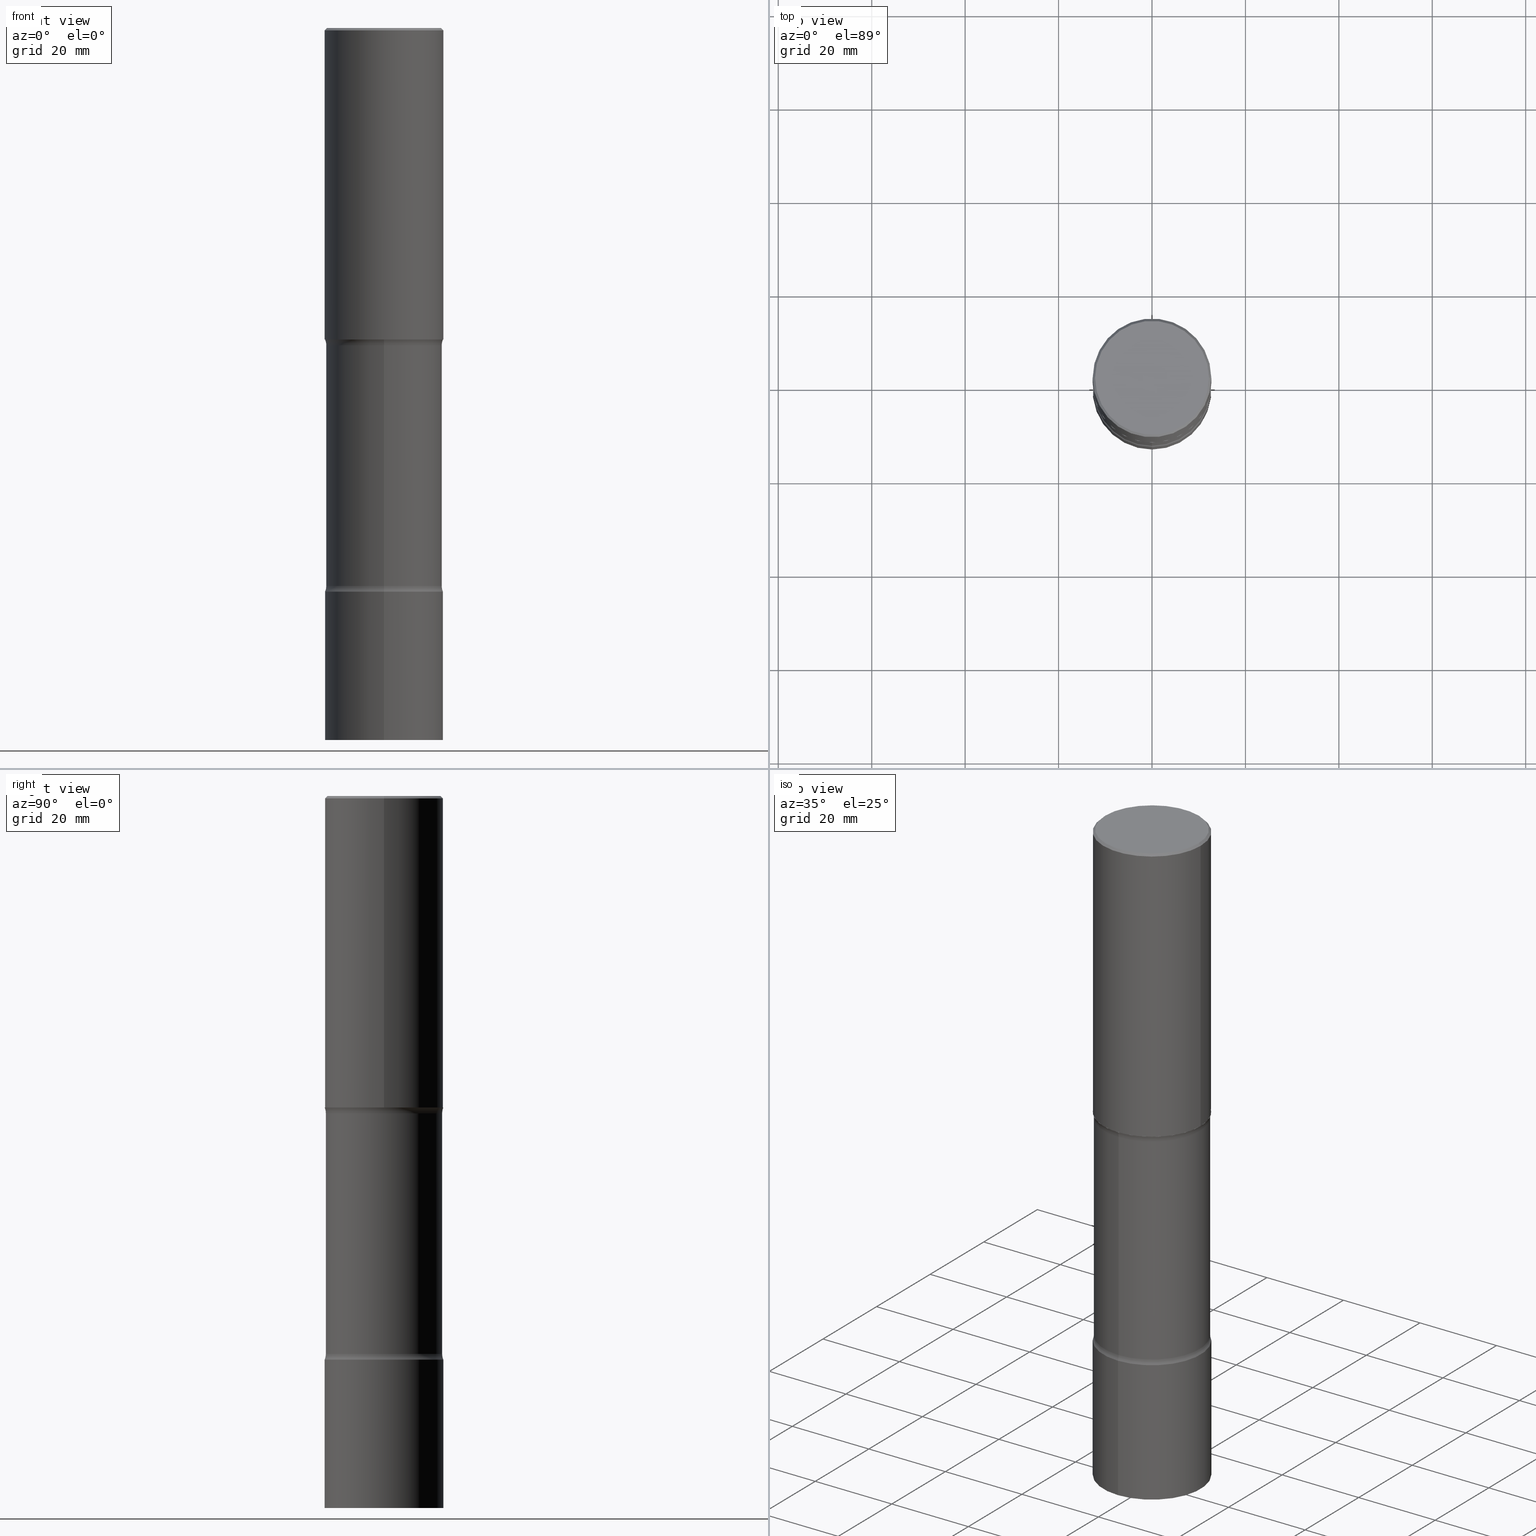
[diagram: canonical four-view strip — front | top / right | iso, engineering-drawing reading convention]
A machine part, canonical four-view strip (front | top / right | iso — engineering-drawing reading convention). The complete STEP part file that produces these views, byte-faithful:
ISO-10303-21;
HEADER;
FILE_DESCRIPTION (( 'STEP AP203' ),
    '1' );
FILE_NAME ('32744.STEP',
    '2024-03-11T13:19:12',
    ( '' ),
    ( '' ),
    'SwSTEP 2.0',
    'SolidWorks 2023',
    '' );
FILE_SCHEMA (( 'CONFIG_CONTROL_DESIGN' ));
ENDSEC;

DATA;
#1 = DIRECTION ( 'NONE',  ( 2.445468806185136597E-29, -3.491481338843145583E-15, -1.000000000000000000 ) ) ;
#2 = UNCERTAINTY_MEASURE_WITH_UNIT (LENGTH_MEASURE( 1.000000000000000082E-05 ), #186, 'distance_accuracy_value', 'NONE');
#3 = CC_DESIGN_DATE_AND_TIME_ASSIGNMENT ( #286, #433, ( #80 ) ) ;
#4 = DIRECTION ( 'NONE',  ( -2.438088387897960049E-29, 3.491481338843145188E-15, 1.000000000000000000 ) ) ;
#5 = DIRECTION ( 'NONE',  ( -6.982962677686265133E-15, -1.000000000000000000, 3.492714180422504382E-15 ) ) ;
#6 = AXIS2_PLACEMENT_3D ( 'NONE', #211, #174, #370 ) ;
#7 = COORDINATED_UNIVERSAL_TIME_OFFSET ( 5, 0, .BEHIND. ) ;
#8 = DIRECTION ( 'NONE',  ( -2.444607917511519707E-29, 3.492714180422504382E-15, 1.000000000000000000 ) ) ;
#9 = ADVANCED_FACE ( 'NONE', ( #118 ), #376, .F. ) ;
#10 = MANIFOLD_SOLID_BREP ( 'Body-Move/Copy2[4]', #229 ) ;
#11 = DIRECTION ( 'NONE',  ( 2.438088387897960049E-29, -3.491481338843145188E-15, -1.000000000000000000 ) ) ;
#12 = DIRECTION ( 'NONE',  ( 6.982962677686265922E-15, 1.000000000000000000, -3.278217592397115073E-15 ) ) ;
#13 = VERTEX_POINT ( 'NONE', #148 ) ;
#14 = AXIS2_PLACEMENT_3D ( 'NONE', #480, #297, #250 ) ;
#15 = VECTOR ( 'NONE', #418, 39.37007874015748143 ) ;
#16 = DIRECTION ( 'NONE',  ( 2.601351323791836917E-29, -3.268248701348439037E-15, -1.000000000000000000 ) ) ;
#17 = ADVANCED_FACE ( 'NONE', ( #281 ), #365, .T. ) ;
#18 = CARTESIAN_POINT ( 'NONE',  ( -3.491481338843133355E-15, -0.5000000000000001110, 1.746357090211252585E-15 ) ) ;
#19 = ORIENTED_EDGE ( 'NONE', *, *, #428, .T. ) ;
#20 = VERTEX_POINT ( 'NONE', #350 ) ;
#21 = CIRCLE ( 'NONE', #318, 0.5000000000000001110 ) ;
#22 = AXIS2_PLACEMENT_3D ( 'NONE', #43, #84, #330 ) ;
#23 = DIRECTION ( 'NONE',  ( 2.601351323791836917E-29, -3.268248701348439037E-15, -1.000000000000000000 ) ) ;
#24 = DIRECTION ( 'NONE',  ( 6.982962677686266711E-15, 1.000000000000000000, -3.278217592397113101E-15 ) ) ;
#25 = ORIENTED_EDGE ( 'NONE', *, *, #325, .F. ) ;
#26 = DIRECTION ( 'NONE',  ( 6.982962677686266711E-15, 1.000000000000000000, -3.278217592397113101E-15 ) ) ;
#27 = ORIENTED_EDGE ( 'NONE', *, *, #119, .T. ) ;
#28 = ORIENTED_EDGE ( 'NONE', *, *, #325, .T. ) ;
#29 = ADVANCED_FACE ( 'NONE', ( #201 ), #34, .F. ) ;
#30 = CIRCLE ( 'NONE', #378, 0.1249999999999999029 ) ;
#31 = CARTESIAN_POINT ( 'NONE',  ( 1.161188760817972078E-28, -1.659039235700689818E-14, -4.750000000000000000 ) ) ;
#32 = EDGE_LOOP ( 'NONE', ( #193, #28, #461, #70 ) ) ;
#33 = DIRECTION ( 'NONE',  ( 1.000000000000000000, -6.982962677686266711E-15, 4.876036955247133327E-29 ) ) ;
#34 = PLANE ( 'NONE',  #156 ) ;
#35 = EDGE_CURVE ( 'NONE', #59, #111, #319, .T. ) ;
#36 = FACE_OUTER_BOUND ( 'NONE', #343, .T. ) ;
#37 = EDGE_LOOP ( 'NONE', ( #225, #448, #341, #405 ) ) ;
#38 = CARTESIAN_POINT ( 'NONE',  ( 6.419355616235988051E-29, -9.165138514463262923E-15, -2.625000000000001776 ) ) ;
#39 = CALENDAR_DATE ( 2024, 11, 3 ) ;
#40 = PLANE ( 'NONE',  #117 ) ;
#41 = EDGE_LOOP ( 'NONE', ( #147, #309, #160, #263 ) ) ;
#42 = EDGE_CURVE ( 'NONE', #128, #111, #208, .T. ) ;
#43 = CARTESIAN_POINT ( 'NONE',  ( 0.000000000000000000, 0.000000000000000000, 0.000000000000000000 ) ) ;
#44 = DIRECTION ( 'NONE',  ( -1.000000000000000000, 6.982962677686265922E-15, -4.876176775795935793E-29 ) ) ;
#45 = TOROIDAL_SURFACE ( 'NONE', #279, 0.6150000000000003242, 0.1250000000000000000 ) ;
#46 = SECURITY_CLASSIFICATION ( '', '', #371 ) ;
#47 = CC_DESIGN_DATE_AND_TIME_ASSIGNMENT ( #222, #57, ( #46 ) ) ;
#48 = FACE_OUTER_BOUND ( 'NONE', #496, .T. ) ;
#49 = ADVANCED_BREP_SHAPE_REPRESENTATION ( '32744', ( #178, #173, #10, #22 ), #170 ) ;
#50 = CARTESIAN_POINT ( 'NONE',  ( -0.4799999999999995937, 3.386736898677836436E-15, 1.280553747027767124E-17 ) ) ;
#51 = ORIENTED_EDGE ( 'NONE', *, *, #333, .T. ) ;
#52 =( LENGTH_UNIT ( ) NAMED_UNIT ( * ) SI_UNIT ( $, .METRE. ) );
#53 = FACE_OUTER_BOUND ( 'NONE', #467, .T. ) ;
#54 = EDGE_LOOP ( 'NONE', ( #363, #69, #218, #144 ) ) ;
#55 = CARTESIAN_POINT ( 'NONE',  ( 0.000000000000000000, 0.000000000000000000, 0.000000000000000000 ) ) ;
#56 = VERTEX_POINT ( 'NONE', #508 ) ;
#57 = DATE_TIME_ROLE ( 'classification_date' ) ;
#58 = DIRECTION ( 'NONE',  ( 2.601351323791836917E-29, -3.268248701348439037E-15, -1.000000000000000000 ) ) ;
#59 = VERTEX_POINT ( 'NONE', #427 ) ;
#60 = PERSON_AND_ORGANIZATION ( #316, #139 ) ;
#61 = CARTESIAN_POINT ( 'NONE',  ( 1.148444794047964962E-28, -1.643028152359054986E-14, -4.701010205144336318 ) ) ;
#62 = ORIENTED_EDGE ( 'NONE', *, *, #447, .F. ) ;
#63 = VECTOR ( 'NONE', #122, 39.37007874015748143 ) ;
#64 = PERSON_AND_ORGANIZATION_ROLE ( 'classification_officer' ) ;
#65 = AXIS2_PLACEMENT_3D ( 'NONE', #398, #353, #5 ) ;
#66 = DIRECTION ( 'NONE',  ( 1.000000000000000000, -6.860497997771530774E-15, 4.843532690973873817E-29 ) ) ;
#67 = ORIENTED_EDGE ( 'NONE', *, *, #424, .T. ) ;
#68 = CARTESIAN_POINT ( 'NONE',  ( 0.4799999999999995937, -3.396558832296479338E-15, 1.280553747032483033E-17 ) ) ;
#69 = ORIENTED_EDGE ( 'NONE', *, *, #35, .T. ) ;
#70 = ORIENTED_EDGE ( 'NONE', *, *, #469, .F. ) ;
#71 = AXIS2_PLACEMENT_3D ( 'NONE', #85, #220, #126 ) ;
#72 = CARTESIAN_POINT ( 'NONE',  ( 1.486357676291951426E-28, -2.067570323369244540E-14, -5.999999999999999112 ) ) ;
#73 = DIRECTION ( 'NONE',  ( -2.445468806185136597E-29, 3.491481338843145583E-15, 1.000000000000000000 ) ) ;
#74 = DIMENSIONAL_EXPONENTS ( 1.000000000000000000, 0.000000000000000000, 0.000000000000000000, 0.000000000000000000, 0.000000000000000000, 0.000000000000000000, 0.000000000000000000 ) ;
#75 = ORIENTED_EDGE ( 'NONE', *, *, #239, .F. ) ;
#76 = EDGE_CURVE ( 'NONE', #56, #335, #260, .T. ) ;
#77 = DIRECTION ( 'NONE',  ( 6.982962677686265922E-15, 1.000000000000000000, -3.268248701348439037E-15 ) ) ;
#78 = AXIS2_PLACEMENT_3D ( 'NONE', #344, #113, #77 ) ;
#79 = CIRCLE ( 'NONE', #230, 0.4900000000000003242 ) ;
#80 = PRODUCT_DEFINITION ( 'UNKNOWN', '', #280, #91 ) ;
#81 = DIRECTION ( 'NONE',  ( -2.444607917511519987E-29, 3.492714180422504776E-15, 1.000000000000000000 ) ) ;
#82 = EDGE_CURVE ( 'NONE', #99, #20, #323, .T. ) ;
#83 = DIRECTION ( 'NONE',  ( 6.982962677686265922E-15, 1.000000000000000000, -3.492714180422504382E-15 ) ) ;
#84 = DIRECTION ( 'NONE',  ( 0.000000000000000000, 0.000000000000000000, 1.000000000000000000 ) ) ;
#85 = CARTESIAN_POINT ( 'NONE',  ( 6.419355616235988051E-29, -9.165138514463262923E-15, -2.625000000000001776 ) ) ;
#86 = VERTEX_POINT ( 'NONE', #114 ) ;
#87 = AXIS2_PLACEMENT_3D ( 'NONE', #406, #362, #12 ) ;
#88 = COORDINATED_UNIVERSAL_TIME_OFFSET ( 5, 0, .BEHIND. ) ;
#89 = DIRECTION ( 'NONE',  ( -6.982962677686265133E-15, -1.000000000000000000, 3.492714180422504382E-15 ) ) ;
#90 = DIRECTION ( 'NONE',  ( -2.445468806185136597E-29, 3.491481338843145583E-15, 1.000000000000000000 ) ) ;
#91 = DESIGN_CONTEXT ( 'detailed design', #440, 'design' ) ;
#92 = DATE_AND_TIME ( #380, #458 ) ;
#93 = CARTESIAN_POINT ( 'NONE',  ( 3.491481338843249712E-15, 0.4999999999999836242, -4.750000000000001776 ) ) ;
#94 = ADVANCED_FACE ( 'NONE', ( #430 ), #131, .T. ) ;
#95 = EDGE_LOOP ( 'NONE', ( #506, #450, #354, #493 ) ) ;
#96 = AXIS2_PLACEMENT_3D ( 'NONE', #240, #73, #242 ) ;
#97 = VECTOR ( 'NONE', #372, 39.37007874015748143 ) ;
#98 = DIRECTION ( 'NONE',  ( -2.445468806185136597E-29, 3.491481338843145583E-15, 1.000000000000000000 ) ) ;
#99 = VERTEX_POINT ( 'NONE', #463 ) ;
#100 = APPROVAL_ROLE ( '' ) ;
#101 = DIRECTION ( 'NONE',  ( 2.601351323791836917E-29, -3.268248701348439037E-15, -1.000000000000000000 ) ) ;
#102 = ORIENTED_EDGE ( 'NONE', *, *, #399, .T. ) ;
#103 = CC_DESIGN_PERSON_AND_ORGANIZATION_ASSIGNMENT ( #136, #64, ( #46 ) ) ;
#104 = CARTESIAN_POINT ( 'NONE',  ( 0.4999999999999997780, -3.491481338843131778E-15, 2.438088387897966775E-29 ) ) ;
#105 = ORIENTED_EDGE ( 'NONE', *, *, #399, .F. ) ;
#106 = CIRCLE ( 'NONE', #498, 0.5000000000000001110 ) ;
#107 = AXIS2_PLACEMENT_3D ( 'NONE', #203, #464, #320 ) ;
#108 = PERSON_AND_ORGANIZATION_ROLE ( 'design_supplier' ) ;
#109 = LOCAL_TIME ( 9, 19, 12.00000000000000000, #7 ) ;
#110 = CARTESIAN_POINT ( 'NONE',  ( 4.294522046777168570E-15, 0.6149999999999835598, -4.701010205144338983 ) ) ;
#111 = VERTEX_POINT ( 'NONE', #315 ) ;
#112 = FACE_OUTER_BOUND ( 'NONE', #382, .T. ) ;
#113 = DIRECTION ( 'NONE',  ( 2.601351323791836917E-29, -3.268248701348439037E-15, -1.000000000000000000 ) ) ;
#114 = CARTESIAN_POINT ( 'NONE',  ( -3.430248998885650608E-15, -0.5000000000000167644, -4.749999999999999112 ) ) ;
#115 = ADVANCED_FACE ( 'NONE', ( #391 ), #345, .F. ) ;
#116 = CLOSED_SHELL ( 'NONE', ( #390, #94, #17, #204, #462, #167 ) ) ;
#117 = AXIS2_PLACEMENT_3D ( 'NONE', #125, #357, #83 ) ;
#118 = FACE_OUTER_BOUND ( 'NONE', #284, .T. ) ;
#119 = EDGE_CURVE ( 'NONE', #452, #235, #331, .T. ) ;
#120 = DIRECTION ( 'NONE',  ( 6.982962677686265922E-15, 1.000000000000000000, -3.278217592397115073E-15 ) ) ;
#121 = PRODUCT_RELATED_PRODUCT_CATEGORY ( 'detail', '', ( #415 ) ) ;
#122 = DIRECTION ( 'NONE',  ( 2.601351323791836917E-29, -3.268248701348439037E-15, -1.000000000000000000 ) ) ;
#123 = COORDINATED_UNIVERSAL_TIME_OFFSET ( 5, 0, .BEHIND. ) ;
#124 = AXIS2_PLACEMENT_3D ( 'NONE', #213, #324, #89 ) ;
#125 = CARTESIAN_POINT ( 'NONE',  ( 5.516144398293378327E-29, -3.406175840264733616E-14, -5.999999999999999112 ) ) ;
#126 = DIRECTION ( 'NONE',  ( 6.982962677686265922E-15, 1.000000000000000000, -3.268248701348439037E-15 ) ) ;
#127 = CC_DESIGN_PERSON_AND_ORGANIZATION_ASSIGNMENT ( #60, #108, ( #280 ) ) ;
#128 = VERTEX_POINT ( 'NONE', #150 ) ;
#129 = CARTESIAN_POINT ( 'NONE',  ( 4.294522046777118082E-15, 0.6149999999999905542, -2.673989794855667679 ) ) ;
#130 = FACE_OUTER_BOUND ( 'NONE', #305, .T. ) ;
#131 = CONICAL_SURFACE ( 'NONE', #219, 0.4999999999999996114, 0.7853981633974460586 ) ;
#132 = VECTOR ( 'NONE', #261, 39.37007874015748143 ) ;
#133 = EDGE_CURVE ( 'NONE', #86, #420, #394, .T. ) ;
#134 = APPROVAL_ROLE ( '' ) ;
#135 = DIRECTION ( 'NONE',  ( -2.445468806185136597E-29, 3.491481338843145583E-15, 1.000000000000000000 ) ) ;
#136 = PERSON_AND_ORGANIZATION ( #316, #139 ) ;
#137 = CARTESIAN_POINT ( 'NONE',  ( 1.486357676291951426E-28, -2.067570323369244540E-14, -5.999999999999999112 ) ) ;
#138 = ORIENTED_EDGE ( 'NONE', *, *, #264, .T. ) ;
#139 = ORGANIZATION ( 'UNSPECIFIED', 'UNSPECIFIED', '' ) ;
#140 = ORIENTED_EDGE ( 'NONE', *, *, #502, .T. ) ;
#141 = DIRECTION ( 'NONE',  ( 6.982962677686266711E-15, 1.000000000000000000, -2.230079994827968904E-15 ) ) ;
#142 = LENGTH_MEASURE_WITH_UNIT ( LENGTH_MEASURE( 0.02539999999999999897 ), #52 );
#143 = ORIENTED_EDGE ( 'NONE', *, *, #133, .F. ) ;
#144 = ORIENTED_EDGE ( 'NONE', *, *, #497, .F. ) ;
#145 = AXIS2_PLACEMENT_3D ( 'NONE', #55, #459, #274 ) ;
#146 = EDGE_CURVE ( 'NONE', #335, #56, #431, .T. ) ;
#147 = ORIENTED_EDGE ( 'NONE', *, *, #76, .T. ) ;
#148 = CARTESIAN_POINT ( 'NONE',  ( 0.5000000000000000000, -1.265661985330639628E-14, -2.625000000000001776 ) ) ;
#149 = FACE_OUTER_BOUND ( 'NONE', #54, .T. ) ;
#150 = CARTESIAN_POINT ( 'NONE',  ( 3.421651712066386020E-15, 0.4899999999999836153, -4.701010205144338094 ) ) ;
#151 = EDGE_CURVE ( 'NONE', #290, #490, #106, .T. ) ;
#152 = TOROIDAL_SURFACE ( 'NONE', #419, 0.6150000000000003242, 0.1250000000000000000 ) ;
#153 = DIRECTION ( 'NONE',  ( 2.445468806185136597E-29, -3.491481338843145583E-15, -1.000000000000000000 ) ) ;
#154 = DIRECTION ( 'NONE',  ( -2.444607917511519987E-29, 3.492714180422504776E-15, 1.000000000000000000 ) ) ;
#155 = DIRECTION ( 'NONE',  ( 6.860497997771532351E-15, 1.000000000000000000, 0.000000000000000000 ) ) ;
#156 = AXIS2_PLACEMENT_3D ( 'NONE', #243, #425, #388 ) ;
#157 = EDGE_CURVE ( 'NONE', #335, #290, #368, .T. ) ;
#158 = AXIS2_PLACEMENT_3D ( 'NONE', #383, #451, #24 ) ;
#159 = LINE ( 'NONE', #437, #15 ) ;
#160 = ORIENTED_EDGE ( 'NONE', *, *, #264, .F. ) ;
#161 = PERSON_AND_ORGANIZATION ( #316, #139 ) ;
#162 = CARTESIAN_POINT ( 'NONE',  ( 3.351822085289404787E-15, 0.4799999999999995937, -1.669508273909557867E-15 ) ) ;
#163 = VERTEX_POINT ( 'NONE', #217 ) ;
#164 = DIRECTION ( 'NONE',  ( -2.445468806185136597E-29, 3.491481338843145583E-15, 1.000000000000000000 ) ) ;
#165 = PERSON_AND_ORGANIZATION ( #316, #139 ) ;
#166 = DIRECTION ( 'NONE',  ( -6.982962677686265922E-15, -1.000000000000000000, 3.278217592397115073E-15 ) ) ;
#167 = ADVANCED_FACE ( 'NONE', ( #53 ), #477, .T. ) ;
#168 = AXIS2_PLACEMENT_3D ( 'NONE', #445, #135, #434 ) ;
#169 = CARTESIAN_POINT ( 'NONE',  ( 3.552713678800500929E-15, 0.5000000000000001110, -1.746357090211252585E-15 ) ) ;
#170 =( GEOMETRIC_REPRESENTATION_CONTEXT ( 3 ) GLOBAL_UNCERTAINTY_ASSIGNED_CONTEXT ( ( #2 ) ) GLOBAL_UNIT_ASSIGNED_CONTEXT ( ( #186, #492, #269 ) ) REPRESENTATION_CONTEXT ( 'NONE', 'WORKASPACE' ) );
#171 = ORIENTED_EDGE ( 'NONE', *, *, #133, .T. ) ;
#172 = LOCAL_TIME ( 9, 19, 12.00000000000000000, #88 ) ;
#173 = MANIFOLD_SOLID_BREP ( 'Body-Move/Copy2[2]', #116 ) ;
#174 = DIRECTION ( 'NONE',  ( 2.601351323791836917E-29, -3.268248701348439037E-15, -1.000000000000000000 ) ) ;
#175 = MECHANICAL_CONTEXT ( 'NONE', #389, 'mechanical' ) ;
#176 = DIRECTION ( 'NONE',  ( -2.444607917511519707E-29, 3.492714180422504382E-15, 1.000000000000000000 ) ) ;
#177 = ORIENTED_EDGE ( 'NONE', *, *, #291, .T. ) ;
#178 = MANIFOLD_SOLID_BREP ( 'Body-Move/Copy2[1]', #505 ) ;
#179 = EDGE_CURVE ( 'NONE', #454, #13, #488, .T. ) ;
#180 = ORIENTED_EDGE ( 'NONE', *, *, #151, .T. ) ;
#181 = CC_DESIGN_PERSON_AND_ORGANIZATION_ASSIGNMENT ( #165, #294, ( #80 ) ) ;
#182 = EDGE_LOOP ( 'NONE', ( #51, #27 ) ) ;
#183 = AXIS2_PLACEMENT_3D ( 'NONE', #129, #359, #210 ) ;
#184 = AXIS2_PLACEMENT_3D ( 'NONE', #137, #414, #141 ) ;
#185 = CYLINDRICAL_SURFACE ( 'NONE', #145, 0.4999999999999997780 ) ;
#186 =( CONVERSION_BASED_UNIT ( 'INCH', #142 ) LENGTH_UNIT ( ) NAMED_UNIT ( #74 ) );
#187 = ORIENTED_EDGE ( 'NONE', *, *, #469, .T. ) ;
#188 = SHAPE_DEFINITION_REPRESENTATION ( #202, #49 ) ;
#189 = ORIENTED_EDGE ( 'NONE', *, *, #369, .T. ) ;
#190 = ADVANCED_FACE ( 'NONE', ( #48 ), #45, .F. ) ;
#191 = CARTESIAN_POINT ( 'NONE',  ( -0.4999999999999996114, 3.421651712066267296E-15, -0.02000000000000006981 ) ) ;
#192 = LINE ( 'NONE', #500, #194 ) ;
#193 = ORIENTED_EDGE ( 'NONE', *, *, #119, .F. ) ;
#194 = VECTOR ( 'NONE', #101, 39.37007874015748143 ) ;
#195 = ADVANCED_FACE ( 'NONE', ( #401 ), #326, .T. ) ;
#196 = EDGE_LOOP ( 'NONE', ( #270, #375, #317, #471 ) ) ;
#197 = EDGE_CURVE ( 'NONE', #20, #99, #342, .T. ) ;
#198 = CARTESIAN_POINT ( 'NONE',  ( 4.890937612370289799E-31, -6.982962677686315028E-17, -0.02000000000000006981 ) ) ;
#199 = CARTESIAN_POINT ( 'NONE',  ( 1.161188760817972078E-28, -1.659039235700689818E-14, -4.750000000000000000 ) ) ;
#200 = AXIS2_PLACEMENT_3D ( 'NONE', #258, #164, #293 ) ;
#201 = FACE_OUTER_BOUND ( 'NONE', #476, .T. ) ;
#202 = PRODUCT_DEFINITION_SHAPE ( 'NONE', 'NONE',  #80 ) ;
#203 = CARTESIAN_POINT ( 'NONE',  ( 1.148444794047964962E-28, -1.643028152359054986E-14, -4.701010205144336318 ) ) ;
#204 = ADVANCED_FACE ( 'NONE', ( #292 ), #475, .F. ) ;
#205 = FACE_OUTER_BOUND ( 'NONE', #95, .T. ) ;
#206 = ORIENTED_EDGE ( 'NONE', *, *, #82, .T. ) ;
#207 = DIRECTION ( 'NONE',  ( 1.000000000000000000, -6.982962677686265922E-15, 4.876176775795935793E-29 ) ) ;
#208 = CIRCLE ( 'NONE', #107, 0.4900000000000001021 ) ;
#209 = LOCAL_TIME ( 9, 19, 12.00000000000000000, #123 ) ;
#210 = DIRECTION ( 'NONE',  ( -6.982962677686269077E-15, -1.000000000000000000, 0.000000000000000000 ) ) ;
#211 = CARTESIAN_POINT ( 'NONE',  ( 6.211455712822142342E-29, -9.805474700057820647E-15, -2.673989794855665458 ) ) ;
#212 = APPLICATION_PROTOCOL_DEFINITION ( 'international standard', 'config_control_design', 1994, #440 ) ;
#213 = CARTESIAN_POINT ( 'NONE',  ( 0.000000000000000000, 0.000000000000000000, 0.000000000000000000 ) ) ;
#214 = ADVANCED_FACE ( 'NONE', ( #408 ), #252, .F. ) ;
#215 = ORIENTED_EDGE ( 'NONE', *, *, #247, .T. ) ;
#216 = DATE_AND_TIME ( #358, #109 ) ;
#217 = CARTESIAN_POINT ( 'NONE',  ( 3.421651712066334744E-15, 0.4899999999999904432, -2.673989794855666791 ) ) ;
#218 = ORIENTED_EDGE ( 'NONE', *, *, #42, .F. ) ;
#219 = AXIS2_PLACEMENT_3D ( 'NONE', #198, #1, #503 ) ;
#220 = DIRECTION ( 'NONE',  ( 2.601351323791836357E-29, -3.268248701348439037E-15, -1.000000000000000000 ) ) ;
#221 = CIRCLE ( 'NONE', #272, 0.4900000000000001021 ) ;
#222 = DATE_AND_TIME ( #413, #336 ) ;
#223 = EDGE_LOOP ( 'NONE', ( #105, #337 ) ) ;
#224 = DIRECTION ( 'NONE',  ( 6.982962677686265922E-15, 1.000000000000000000, -3.345119992241952764E-15 ) ) ;
#225 = ORIENTED_EDGE ( 'NONE', *, *, #486, .T. ) ;
#226 = COORDINATED_UNIVERSAL_TIME_OFFSET ( 5, 0, .BEHIND. ) ;
#227 = CARTESIAN_POINT ( 'NONE',  ( -4.219206268629376327E-15, -0.6150000000000164224, -4.701010205144334542 ) ) ;
#228 = ORIENTED_EDGE ( 'NONE', *, *, #435, .F. ) ;
#229 = CLOSED_SHELL ( 'NONE', ( #457, #374, #190, #478, #214, #115, #9, #407 ) ) ;
#230 = AXIS2_PLACEMENT_3D ( 'NONE', #300, #58, #224 ) ;
#231 = CARTESIAN_POINT ( 'NONE',  ( 6.205321761211702970E-29, -9.814258867886813269E-15, -2.673989794855665458 ) ) ;
#232 = CARTESIAN_POINT ( 'NONE',  ( 1.149617381423846598E-28, -1.641348940497263768E-14, -4.701010205144336318 ) ) ;
#233 = ORIENTED_EDGE ( 'NONE', *, *, #82, .F. ) ;
#234 = CARTESIAN_POINT ( 'NONE',  ( -0.5000000000000000000, -1.064770391819559223E-15, -2.625000000000001776 ) ) ;
#235 = VERTEX_POINT ( 'NONE', #50 ) ;
#236 = DIRECTION ( 'NONE',  ( -6.982962677686265922E-15, -1.000000000000000000, 4.370956789862821150E-15 ) ) ;
#237 = AXIS2_PLACEMENT_3D ( 'NONE', #504, #423, #33 ) ;
#238 = CIRCLE ( 'NONE', #87, 0.5000000000000001110 ) ;
#239 = EDGE_CURVE ( 'NONE', #163, #373, #355, .T. ) ;
#240 = CARTESIAN_POINT ( 'NONE',  ( 4.890937612370289799E-31, -6.982962677686315028E-17, -0.02000000000000006981 ) ) ;
#241 = APPROVAL ( #249, 'UNSPECIFIED' ) ;
#242 = DIRECTION ( 'NONE',  ( 1.000000000000000000, -6.982962677686266711E-15, 0.000000000000000000 ) ) ;
#243 = CARTESIAN_POINT ( 'NONE',  ( 1.161597682937940108E-28, -1.658453635950494339E-14, -4.750000000000000000 ) ) ;
#244 = AXIS2_PLACEMENT_3D ( 'NONE', #199, #346, #120 ) ;
#245 = APPROVAL_PERSON_ORGANIZATION ( #436, #287, #134 ) ;
#246 = CARTESIAN_POINT ( 'NONE',  ( -3.361644018907903327E-15, -0.4900000000000209188, -5.999999999999998224 ) ) ;
#247 = EDGE_CURVE ( 'NONE', #59, #268, #466, .T. ) ;
#248 = CARTESIAN_POINT ( 'NONE',  ( 3.552713678800647657E-15, 0.4999999999999835132, -4.750000000000001776 ) ) ;
#249 = APPROVAL_STATUS ( 'not_yet_approved' ) ;
#250 = DIRECTION ( 'NONE',  ( 1.000000000000000000, -6.982962677686266711E-15, 0.000000000000000000 ) ) ;
#251 = AXIS2_PLACEMENT_3D ( 'NONE', #404, #438, #155 ) ;
#252 = PLANE ( 'NONE',  #71 ) ;
#253 = ORIENTED_EDGE ( 'NONE', *, *, #179, .F. ) ;
#254 = CARTESIAN_POINT ( 'NONE',  ( 4.890937612370289799E-31, -6.982962677686315028E-17, -0.02000000000000006981 ) ) ;
#255 = DIRECTION ( 'NONE',  ( 6.982962677686266711E-15, 1.000000000000000000, -3.345119992241954342E-15 ) ) ;
#256 = DIRECTION ( 'NONE',  ( 6.982962677686265922E-15, 1.000000000000000000, -3.268248701348439432E-15 ) ) ;
#257 = DIRECTION ( 'NONE',  ( 1.000000000000000000, -6.982962677686266711E-15, 0.000000000000000000 ) ) ;
#258 = CARTESIAN_POINT ( 'NONE',  ( 6.419355616235988051E-29, -9.165138514463262923E-15, -2.625000000000001776 ) ) ;
#259 = COORDINATED_UNIVERSAL_TIME_OFFSET ( 5, 0, .BEHIND. ) ;
#260 = CIRCLE ( 'NONE', #347, 0.5000000000000000000 ) ;
#261 = DIRECTION ( 'NONE',  ( -2.445468806185136877E-29, 3.491481338843145188E-15, 1.000000000000000000 ) ) ;
#262 = APPROVAL_PERSON_ORGANIZATION ( #442, #241, #352 ) ;
#263 = ORIENTED_EDGE ( 'NONE', *, *, #364, .F. ) ;
#264 = EDGE_CURVE ( 'NONE', #490, #290, #21, .T. ) ;
#265 = CARTESIAN_POINT ( 'NONE',  ( 3.552713678800631091E-15, 0.4999999999999790168, -6.000000000000002665 ) ) ;
#266 = ORIENTED_EDGE ( 'NONE', *, *, #76, .F. ) ;
#267 = DIRECTION ( 'NONE',  ( 1.000000000000000000, -6.982962677686266711E-15, 4.876036955247133327E-29 ) ) ;
#268 = VERTEX_POINT ( 'NONE', #328 ) ;
#269 =( NAMED_UNIT ( * ) SI_UNIT ( $, .STERADIAN. ) SOLID_ANGLE_UNIT ( ) );
#270 = ORIENTED_EDGE ( 'NONE', *, *, #35, .F. ) ;
#271 = AXIS2_PLACEMENT_3D ( 'NONE', #278, #386, #276 ) ;
#272 = AXIS2_PLACEMENT_3D ( 'NONE', #61, #360, #255 ) ;
#273 = APPROVAL_STATUS ( 'not_yet_approved' ) ;
#274 = DIRECTION ( 'NONE',  ( 1.000000000000000000, -6.982962677686266711E-15, 4.876176775795935793E-29 ) ) ;
#275 = ORIENTED_EDGE ( 'NONE', *, *, #239, .T. ) ;
#276 = DIRECTION ( 'NONE',  ( -6.982962677686265922E-15, -1.000000000000000000, 3.268248701348439037E-15 ) ) ;
#277 = ADVANCED_FACE ( 'NONE', ( #130 ), #40, .T. ) ;
#278 = CARTESIAN_POINT ( 'NONE',  ( 1.161597682937940108E-28, -1.658453635950494339E-14, -4.750000000000000000 ) ) ;
#279 = AXIS2_PLACEMENT_3D ( 'NONE', #296, #289, #483 ) ;
#280 = PRODUCT_DEFINITION_FORMATION_WITH_SPECIFIED_SOURCE ( 'ANY', '', #415, .NOT_KNOWN. ) ;
#281 = FACE_OUTER_BOUND ( 'NONE', #384, .T. ) ;
#282 = CARTESIAN_POINT ( 'NONE',  ( 1.466764750506912217E-28, -2.095628508253502945E-14, -6.000000000000000888 ) ) ;
#283 = CARTESIAN_POINT ( 'NONE',  ( -3.491481338843017787E-15, -0.5000000000000167644, -4.749999999999999112 ) ) ;
#284 = EDGE_LOOP ( 'NONE', ( #417, #327, #19, #422 ) ) ;
#285 = CC_DESIGN_SECURITY_CLASSIFICATION ( #46, ( #280 ) ) ;
#286 = DATE_AND_TIME ( #39, #209 ) ;
#287 = APPROVAL ( #472, 'UNSPECIFIED' ) ;
#288 = CYLINDRICAL_SURFACE ( 'NONE', #65, 0.5000000000000001110 ) ;
#289 = DIRECTION ( 'NONE',  ( 2.601351323791836917E-29, -3.268248701348439037E-15, -1.000000000000000000 ) ) ;
#290 = VERTEX_POINT ( 'NONE', #248 ) ;
#291 = EDGE_CURVE ( 'NONE', #420, #86, #238, .T. ) ;
#292 = FACE_OUTER_BOUND ( 'NONE', #182, .T. ) ;
#293 = DIRECTION ( 'NONE',  ( 1.000000000000000000, -6.982962677686266711E-15, 0.000000000000000000 ) ) ;
#294 = PERSON_AND_ORGANIZATION_ROLE ( 'creator' ) ;
#295 = AXIS2_PLACEMENT_3D ( 'NONE', #232, #23, #446 ) ;
#296 = CARTESIAN_POINT ( 'NONE',  ( 6.205321761211702970E-29, -9.814258867886813269E-15, -2.673989794855665458 ) ) ;
#297 = DIRECTION ( 'NONE',  ( -2.445468806185136597E-29, 3.491481338843145583E-15, 1.000000000000000000 ) ) ;
#298 = DIRECTION ( 'NONE',  ( 6.860497997771531562E-15, 1.000000000000000000, 0.000000000000000000 ) ) ;
#299 = AXIS2_PLACEMENT_3D ( 'NONE', #282, #429, #236 ) ;
#300 = CARTESIAN_POINT ( 'NONE',  ( 6.211455712822142342E-29, -9.805474700057820647E-15, -2.673989794855665458 ) ) ;
#301 = AXIS2_PLACEMENT_3D ( 'NONE', #38, #4, #207 ) ;
#302 = ORIENTED_EDGE ( 'NONE', *, *, #494, .T. ) ;
#303 = PERSON_AND_ORGANIZATION ( #316, #139 ) ;
#304 = CARTESIAN_POINT ( 'NONE',  ( -3.131554243005659264E-46, 4.471029511141341874E-32, 1.280553747030123384E-17 ) ) ;
#305 = EDGE_LOOP ( 'NONE', ( #266, #416 ) ) ;
#306 = ADVANCED_FACE ( 'NONE', ( #205 ), #288, .T. ) ;
#307 = CYLINDRICAL_SURFACE ( 'NONE', #184, 0.4900000000000002132 ) ;
#308 = ORIENTED_EDGE ( 'NONE', *, *, #179, .T. ) ;
#309 = ORIENTED_EDGE ( 'NONE', *, *, #157, .T. ) ;
#310 = VECTOR ( 'NONE', #176, 39.37007874015748143 ) ;
#311 = DIRECTION ( 'NONE',  ( -0.7071067811865459074, 2.468850131082240100E-15, -0.7071067811865491270 ) ) ;
#312 = CYLINDRICAL_SURFACE ( 'NONE', #410, 0.4900000000000002132 ) ;
#313 = DIRECTION ( 'NONE',  ( -1.000000000000000000, 6.982962677686266711E-15, 0.000000000000000000 ) ) ;
#314 = CC_DESIGN_PERSON_AND_ORGANIZATION_ASSIGNMENT ( #161, #484, ( #280 ) ) ;
#315 = CARTESIAN_POINT ( 'NONE',  ( -3.395946508896793533E-15, -0.4900000000000166445, -4.701010205144335430 ) ) ;
#316 = PERSON ( 'UNSPECIFIED', 'UNSPECIFIED', 'UNSPECIFIED', ('UNSPECIFIED'), ('UNSPECIFIED'), ('UNSPECIFIED') ) ;
#317 = ORIENTED_EDGE ( 'NONE', *, *, #497, .T. ) ;
#318 = AXIS2_PLACEMENT_3D ( 'NONE', #322, #81, #166 ) ;
#319 = LINE ( 'NONE', #246, #63 ) ;
#320 = DIRECTION ( 'NONE',  ( 6.982962677686266711E-15, 1.000000000000000000, -3.345119992241954342E-15 ) ) ;
#321 = PLANE ( 'NONE',  #301 ) ;
#322 = CARTESIAN_POINT ( 'NONE',  ( 1.161188760817972078E-28, -1.659039235700689818E-14, -4.750000000000000000 ) ) ;
#323 = CIRCLE ( 'NONE', #96, 0.4999999999999996114 ) ;
#324 = DIRECTION ( 'NONE',  ( -2.444607917511519987E-29, 3.492714180422504776E-15, 1.000000000000000000 ) ) ;
#325 = EDGE_CURVE ( 'NONE', #452, #20, #159, .T. ) ;
#326 = CYLINDRICAL_SURFACE ( 'NONE', #124, 0.5000000000000001110 ) ;
#327 = ORIENTED_EDGE ( 'NONE', *, *, #291, .F. ) ;
#328 = CARTESIAN_POINT ( 'NONE',  ( -3.430248998885707800E-15, -0.5000000000000101030, -2.625000000000000000 ) ) ;
#329 = DIRECTION ( 'NONE',  ( 2.601351323791836917E-29, -3.268248701348439037E-15, -1.000000000000000000 ) ) ;
#330 = DIRECTION ( 'NONE',  ( 1.000000000000000000, 0.000000000000000000, 0.000000000000000000 ) ) ;
#331 = CIRCLE ( 'NONE', #237, 0.4799999999999995937 ) ;
#332 = CIRCLE ( 'NONE', #426, 0.5000000000000004441 ) ;
#333 = EDGE_CURVE ( 'NONE', #235, #452, #402, .T. ) ;
#334 = FACE_OUTER_BOUND ( 'NONE', #412, .T. ) ;
#335 = VERTEX_POINT ( 'NONE', #265 ) ;
#336 = LOCAL_TIME ( 9, 19, 12.00000000000000000, #259 ) ;
#337 = ORIENTED_EDGE ( 'NONE', *, *, #494, .F. ) ;
#338 = ORIENTED_EDGE ( 'NONE', *, *, #465, .F. ) ;
#339 = CC_DESIGN_PERSON_AND_ORGANIZATION_ASSIGNMENT ( #397, #366, ( #415 ) ) ;
#340 = DIRECTION ( 'NONE',  ( -6.982962677686268288E-15, -1.000000000000000000, 0.000000000000000000 ) ) ;
#341 = ORIENTED_EDGE ( 'NONE', *, *, #197, .F. ) ;
#342 = CIRCLE ( 'NONE', #409, 0.4999999999999996114 ) ;
#343 = EDGE_LOOP ( 'NONE', ( #487, #253 ) ) ;
#344 = CARTESIAN_POINT ( 'NONE',  ( 1.149617381423846598E-28, -1.641348940497263768E-14, -4.701010205144336318 ) ) ;
#345 = PLANE ( 'NONE',  #271 ) ;
#346 = DIRECTION ( 'NONE',  ( 2.601351323791836917E-29, -3.268248701348439037E-15, -1.000000000000000000 ) ) ;
#347 = AXIS2_PLACEMENT_3D ( 'NONE', #470, #154, #351 ) ;
#348 = AXIS2_PLACEMENT_3D ( 'NONE', #304, #98, #267 ) ;
#349 = LINE ( 'NONE', #191, #432 ) ;
#350 = CARTESIAN_POINT ( 'NONE',  ( 0.4999999999999996114, -3.500078625662626318E-15, -0.02000000000000006981 ) ) ;
#351 = DIRECTION ( 'NONE',  ( -6.982962677686265922E-15, -1.000000000000000000, 4.370956789862821150E-15 ) ) ;
#352 = APPROVAL_ROLE ( '' ) ;
#353 = DIRECTION ( 'NONE',  ( -2.444607917511519987E-29, 3.492714180422504776E-15, 1.000000000000000000 ) ) ;
#354 = ORIENTED_EDGE ( 'NONE', *, *, #364, .T. ) ;
#355 = CIRCLE ( 'NONE', #183, 0.1249999999999999584 ) ;
#356 = DATE_AND_TIME ( #400, #172 ) ;
#357 = DIRECTION ( 'NONE',  ( 2.444607917511519987E-29, -3.492714180422504382E-15, -1.000000000000000000 ) ) ;
#358 = CALENDAR_DATE ( 2024, 11, 3 ) ;
#359 = DIRECTION ( 'NONE',  ( -1.000000000000000000, 6.982962677686265922E-15, -4.883557194083112340E-29 ) ) ;
#360 = DIRECTION ( 'NONE',  ( 2.601351323791836917E-29, -3.268248701348439037E-15, -1.000000000000000000 ) ) ;
#361 = APPROVAL_DATE_TIME ( #356, #241 ) ;
#362 = DIRECTION ( 'NONE',  ( 2.601351323791836917E-29, -3.268248701348439037E-15, -1.000000000000000000 ) ) ;
#363 = ORIENTED_EDGE ( 'NONE', *, *, #447, .T. ) ;
#364 = EDGE_CURVE ( 'NONE', #56, #490, #485, .T. ) ;
#365 = CONICAL_SURFACE ( 'NONE', #456, 0.4999999999999996114, 0.7853981633974460586 ) ;
#366 = PERSON_AND_ORGANIZATION_ROLE ( 'design_owner' ) ;
#367 = CIRCLE ( 'NONE', #158, 0.5000000000000004441 ) ;
#368 = LINE ( 'NONE', #169, #393 ) ;
#369 = EDGE_CURVE ( 'NONE', #86, #111, #30, .T. ) ;
#370 = DIRECTION ( 'NONE',  ( 6.982962677686265922E-15, 1.000000000000000000, -3.345119992241952764E-15 ) ) ;
#371 = SECURITY_CLASSIFICATION_LEVEL ( 'unclassified' ) ;
#372 = DIRECTION ( 'NONE',  ( -2.445468806185136877E-29, 3.491481338843145188E-15, 1.000000000000000000 ) ) ;
#373 = VERTEX_POINT ( 'NONE', #377 ) ;
#374 = ADVANCED_FACE ( 'NONE', ( #334 ), #507, .F. ) ;
#375 = ORIENTED_EDGE ( 'NONE', *, *, #465, .T. ) ;
#376 = TOROIDAL_SURFACE ( 'NONE', #78, 0.6149999999999999911, 0.1249999999999999306 ) ;
#377 = CARTESIAN_POINT ( 'NONE',  ( 3.491481338843196859E-15, 0.4999999999999908407, -2.625000000000003109 ) ) ;
#378 = AXIS2_PLACEMENT_3D ( 'NONE', #227, #66, #298 ) ;
#379 = EDGE_LOOP ( 'NONE', ( #177, #171 ) ) ;
#380 = CALENDAR_DATE ( 2024, 11, 3 ) ;
#381 = DIRECTION ( 'NONE',  ( -1.000000000000000000, 6.982962677686265922E-15, -4.883557194083112340E-29 ) ) ;
#382 = EDGE_LOOP ( 'NONE', ( #501, #62, #275, #102 ) ) ;
#383 = CARTESIAN_POINT ( 'NONE',  ( 6.084016045122070064E-29, -9.645363866641470747E-15, -2.625000000000001776 ) ) ;
#384 = EDGE_LOOP ( 'NONE', ( #25, #392, #187, #206 ) ) ;
#385 = AXIS2_PLACEMENT_3D ( 'NONE', #162, #11, #44 ) ;
#386 = DIRECTION ( 'NONE',  ( -2.601351323791836357E-29, 3.268248701348439037E-15, 1.000000000000000000 ) ) ;
#387 = CIRCLE ( 'NONE', #6, 0.4900000000000003242 ) ;
#388 = DIRECTION ( 'NONE',  ( 6.982962677686265922E-15, 1.000000000000000000, -3.492714180422504382E-15 ) ) ;
#389 = APPLICATION_CONTEXT ( 'configuration controlled 3d designs of mechanical parts and assemblies' ) ;
#390 = ADVANCED_FACE ( 'NONE', ( #421 ), #185, .T. ) ;
#391 = FACE_OUTER_BOUND ( 'NONE', #379, .T. ) ;
#392 = ORIENTED_EDGE ( 'NONE', *, *, #333, .F. ) ;
#393 = VECTOR ( 'NONE', #8, 39.37007874015748143 ) ;
#394 = CIRCLE ( 'NONE', #244, 0.5000000000000001110 ) ;
#395 = CIRCLE ( 'NONE', #200, 0.5000000000000000000 ) ;
#396 = CARTESIAN_POINT ( 'NONE',  ( 4.890937612370289799E-31, -6.982962677686315028E-17, -0.02000000000000006981 ) ) ;
#397 = PERSON_AND_ORGANIZATION ( #316, #139 ) ;
#398 = CARTESIAN_POINT ( 'NONE',  ( 0.000000000000000000, 0.000000000000000000, 0.000000000000000000 ) ) ;
#399 = EDGE_CURVE ( 'NONE', #373, #268, #332, .T. ) ;
#400 = CALENDAR_DATE ( 2024, 11, 3 ) ;
#401 = FACE_OUTER_BOUND ( 'NONE', #41, .T. ) ;
#402 = CIRCLE ( 'NONE', #348, 0.4799999999999995937 ) ;
#403 = APPLICATION_PROTOCOL_DEFINITION ( 'international standard', 'config_control_design', 1994, #389 ) ;
#404 = CARTESIAN_POINT ( 'NONE',  ( -4.219206268629431547E-15, -0.6150000000000102052, -2.673989794855663238 ) ) ;
#405 = ORIENTED_EDGE ( 'NONE', *, *, #424, .F. ) ;
#406 = CARTESIAN_POINT ( 'NONE',  ( 1.161188760817972078E-28, -1.659039235700689818E-14, -4.750000000000000000 ) ) ;
#407 = ADVANCED_FACE ( 'NONE', ( #449 ), #307, .T. ) ;
#408 = FACE_OUTER_BOUND ( 'NONE', #223, .T. ) ;
#409 = AXIS2_PLACEMENT_3D ( 'NONE', #254, #90, #257 ) ;
#410 = AXIS2_PLACEMENT_3D ( 'NONE', #72, #482, #444 ) ;
#411 = LINE ( 'NONE', #495, #97 ) ;
#412 = EDGE_LOOP ( 'NONE', ( #143, #189, #140, #439 ) ) ;
#413 = CALENDAR_DATE ( 2024, 11, 3 ) ;
#414 = DIRECTION ( 'NONE',  ( 2.601351323791836917E-29, -3.268248701348439037E-15, -1.000000000000000000 ) ) ;
#415 = PRODUCT ( '32744', '32744', '', ( #175 ) ) ;
#416 = ORIENTED_EDGE ( 'NONE', *, *, #146, .F. ) ;
#417 = ORIENTED_EDGE ( 'NONE', *, *, #369, .F. ) ;
#418 = DIRECTION ( 'NONE',  ( 0.7071067811865459074, -7.319954787623249734E-15, -0.7071067811865491270 ) ) ;
#419 = AXIS2_PLACEMENT_3D ( 'NONE', #231, #329, #256 ) ;
#420 = VERTEX_POINT ( 'NONE', #93 ) ;
#421 = FACE_OUTER_BOUND ( 'NONE', #37, .T. ) ;
#422 = ORIENTED_EDGE ( 'NONE', *, *, #42, .T. ) ;
#423 = DIRECTION ( 'NONE',  ( -2.445468806185136597E-29, 3.491481338843145583E-15, 1.000000000000000000 ) ) ;
#424 = EDGE_CURVE ( 'NONE', #13, #20, #453, .T. ) ;
#425 = DIRECTION ( 'NONE',  ( 2.444607917511519987E-29, -3.492714180422504382E-15, -1.000000000000000000 ) ) ;
#426 = AXIS2_PLACEMENT_3D ( 'NONE', #491, #16, #26 ) ;
#427 = CARTESIAN_POINT ( 'NONE',  ( -3.395946508896848359E-15, -0.4900000000000101497, -2.673989794855663682 ) ) ;
#428 = EDGE_CURVE ( 'NONE', #420, #128, #441, .T. ) ;
#429 = DIRECTION ( 'NONE',  ( -2.444607917511519987E-29, 3.492714180422504776E-15, 1.000000000000000000 ) ) ;
#430 = FACE_OUTER_BOUND ( 'NONE', #32, .T. ) ;
#431 = CIRCLE ( 'NONE', #299, 0.5000000000000000000 ) ;
#432 = VECTOR ( 'NONE', #311, 39.37007874015748143 ) ;
#433 = DATE_TIME_ROLE ( 'creation_date' ) ;
#434 = DIRECTION ( 'NONE',  ( 1.000000000000000000, -6.982962677686266711E-15, 4.876176775795935793E-29 ) ) ;
#435 = EDGE_CURVE ( 'NONE', #454, #99, #411, .T. ) ;
#436 = PERSON_AND_ORGANIZATION ( #316, #139 ) ;
#437 = CARTESIAN_POINT ( 'NONE',  ( 0.4999999999999996114, -3.500078625662626318E-15, -0.02000000000000006981 ) ) ;
#438 = DIRECTION ( 'NONE',  ( 1.000000000000000000, -6.860497997771530774E-15, 4.843532690973873817E-29 ) ) ;
#439 = ORIENTED_EDGE ( 'NONE', *, *, #428, .F. ) ;
#440 = APPLICATION_CONTEXT ( 'configuration controlled 3d designs of mechanical parts and assemblies' ) ;
#441 = CIRCLE ( 'NONE', #468, 0.1249999999999999029 ) ;
#442 = PERSON_AND_ORGANIZATION ( #316, #139 ) ;
#443 = DIRECTION ( 'NONE',  ( -6.982962677686265922E-15, -1.000000000000000000, 3.278217592397115073E-15 ) ) ;
#444 = DIRECTION ( 'NONE',  ( 6.982962677686266711E-15, 1.000000000000000000, -2.230079994827968904E-15 ) ) ;
#445 = CARTESIAN_POINT ( 'NONE',  ( 0.000000000000000000, 0.000000000000000000, 0.000000000000000000 ) ) ;
#446 = DIRECTION ( 'NONE',  ( 6.982962677686265922E-15, 1.000000000000000000, -3.268248701348439037E-15 ) ) ;
#447 = EDGE_CURVE ( 'NONE', #163, #59, #79, .T. ) ;
#448 = ORIENTED_EDGE ( 'NONE', *, *, #435, .T. ) ;
#449 = FACE_OUTER_BOUND ( 'NONE', #196, .T. ) ;
#450 = ORIENTED_EDGE ( 'NONE', *, *, #146, .T. ) ;
#451 = DIRECTION ( 'NONE',  ( 2.601351323791836917E-29, -3.268248701348439037E-15, -1.000000000000000000 ) ) ;
#452 = VERTEX_POINT ( 'NONE', #68 ) ;
#453 = LINE ( 'NONE', #104, #132 ) ;
#454 = VERTEX_POINT ( 'NONE', #234 ) ;
#455 = APPROVAL_DATE_TIME ( #92, #481 ) ;
#456 = AXIS2_PLACEMENT_3D ( 'NONE', #396, #153, #313 ) ;
#457 = ADVANCED_FACE ( 'NONE', ( #149 ), #312, .T. ) ;
#458 = LOCAL_TIME ( 9, 19, 12.00000000000000000, #226 ) ;
#459 = DIRECTION ( 'NONE',  ( -2.445468806185136597E-29, 3.491481338843145583E-15, 1.000000000000000000 ) ) ;
#460 = APPROVAL_PERSON_ORGANIZATION ( #303, #481, #100 ) ;
#461 = ORIENTED_EDGE ( 'NONE', *, *, #197, .T. ) ;
#462 = ADVANCED_FACE ( 'NONE', ( #36 ), #321, .F. ) ;
#463 = CARTESIAN_POINT ( 'NONE',  ( -0.4999999999999996114, 3.421651712066267296E-15, -0.02000000000000006981 ) ) ;
#464 = DIRECTION ( 'NONE',  ( 2.601351323791836917E-29, -3.268248701348439037E-15, -1.000000000000000000 ) ) ;
#465 = EDGE_CURVE ( 'NONE', #59, #163, #387, .T. ) ;
#466 = CIRCLE ( 'NONE', #251, 0.1249999999999999584 ) ;
#467 = EDGE_LOOP ( 'NONE', ( #228, #308, #67, #233 ) ) ;
#468 = AXIS2_PLACEMENT_3D ( 'NONE', #110, #381, #340 ) ;
#469 = EDGE_CURVE ( 'NONE', #235, #99, #349, .T. ) ;
#470 = CARTESIAN_POINT ( 'NONE',  ( 1.466764750506912217E-28, -2.095628508253502945E-14, -6.000000000000000888 ) ) ;
#471 = ORIENTED_EDGE ( 'NONE', *, *, #502, .F. ) ;
#472 = APPROVAL_STATUS ( 'not_yet_approved' ) ;
#473 = DIRECTION ( 'NONE',  ( -2.444607917511519987E-29, 3.492714180422504776E-15, 1.000000000000000000 ) ) ;
#474 = CC_DESIGN_APPROVAL ( #287, ( #80 ) ) ;
#475 = PLANE ( 'NONE',  #385 ) ;
#476 = EDGE_LOOP ( 'NONE', ( #138, #180 ) ) ;
#477 = CYLINDRICAL_SURFACE ( 'NONE', #168, 0.4999999999999997780 ) ;
#478 = ADVANCED_FACE ( 'NONE', ( #112 ), #152, .F. ) ;
#479 = APPROVAL_DATE_TIME ( #216, #287 ) ;
#480 = CARTESIAN_POINT ( 'NONE',  ( 6.419355616235988051E-29, -9.165138514463262923E-15, -2.625000000000001776 ) ) ;
#481 = APPROVAL ( #273, 'UNSPECIFIED' ) ;
#482 = DIRECTION ( 'NONE',  ( 2.601351323791836917E-29, -3.268248701348439037E-15, -1.000000000000000000 ) ) ;
#483 = DIRECTION ( 'NONE',  ( 6.982962677686265922E-15, 1.000000000000000000, -3.268248701348439432E-15 ) ) ;
#484 = PERSON_AND_ORGANIZATION_ROLE ( 'creator' ) ;
#485 = LINE ( 'NONE', #18, #310 ) ;
#486 = EDGE_CURVE ( 'NONE', #13, #454, #395, .T. ) ;
#487 = ORIENTED_EDGE ( 'NONE', *, *, #486, .F. ) ;
#488 = CIRCLE ( 'NONE', #14, 0.5000000000000000000 ) ;
#489 = CC_DESIGN_APPROVAL ( #241, ( #280 ) ) ;
#490 = VERTEX_POINT ( 'NONE', #283 ) ;
#491 = CARTESIAN_POINT ( 'NONE',  ( 6.084016045122070064E-29, -9.645363866641470747E-15, -2.625000000000001776 ) ) ;
#492 =( NAMED_UNIT ( * ) PLANE_ANGLE_UNIT ( ) SI_UNIT ( $, .RADIAN. ) );
#493 = ORIENTED_EDGE ( 'NONE', *, *, #151, .F. ) ;
#494 = EDGE_CURVE ( 'NONE', #268, #373, #367, .T. ) ;
#495 = CARTESIAN_POINT ( 'NONE',  ( -0.4999999999999997780, 3.552713678800499352E-15, -2.459467545127452050E-29 ) ) ;
#496 = EDGE_LOOP ( 'NONE', ( #338, #215, #302, #75 ) ) ;
#497 = EDGE_CURVE ( 'NONE', #163, #128, #192, .T. ) ;
#498 = AXIS2_PLACEMENT_3D ( 'NONE', #31, #473, #443 ) ;
#499 = CC_DESIGN_APPROVAL ( #481, ( #46 ) ) ;
#500 = CARTESIAN_POINT ( 'NONE',  ( 3.421651712066420335E-15, 0.4899999999999795630, -6.000000000000000888 ) ) ;
#501 = ORIENTED_EDGE ( 'NONE', *, *, #247, .F. ) ;
#502 = EDGE_CURVE ( 'NONE', #111, #128, #221, .T. ) ;
#503 = DIRECTION ( 'NONE',  ( -1.000000000000000000, 6.982962677686266711E-15, 0.000000000000000000 ) ) ;
#504 = CARTESIAN_POINT ( 'NONE',  ( -3.131554243005659264E-46, 4.471029511141341874E-32, 1.280553747030123384E-17 ) ) ;
#505 = CLOSED_SHELL ( 'NONE', ( #195, #306, #29, #277 ) ) ;
#506 = ORIENTED_EDGE ( 'NONE', *, *, #157, .F. ) ;
#507 = TOROIDAL_SURFACE ( 'NONE', #295, 0.6149999999999999911, 0.1249999999999999306 ) ;
#508 = CARTESIAN_POINT ( 'NONE',  ( -3.491481338842986233E-15, -0.5000000000000209832, -5.999999999999998224 ) ) ;
ENDSEC;
END-ISO-10303-21;
